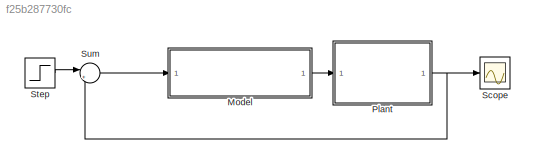
MODEL slx_f25b287730fc
KIND model
CONFIG AbsTol = auto
CONFIG EnableMultiTasking = off
CONFIG FixedStep = auto
CONFIG MaxStep = auto
CONFIG MinStep = auto
CONFIG RelTol = 1e-3
CONFIG SampleTimeConstraint = Unconstrained
CONFIG SolverName = VariableStepAuto
CONFIG StartTime = 0.0
CONFIG StopTime = 50
BLOCK [ModelReference] Model
  ModelNameDialog = PID_reference_model.slx
  ModelReferenceVersion = 1.4
  Ports = [1, 1]
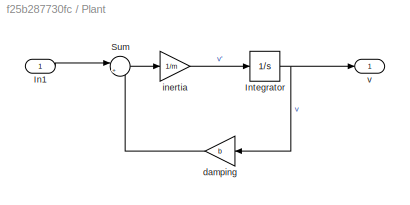
BLOCK [SubSystem] Plant
  Ports = [1, 1]
  RequestExecContextInheritance = off
BLOCK [Inport] Plant/In1
BLOCK [Integrator] Plant/Integrator
  Ports = [1, 1]
BLOCK [Sum] Plant/Sum
  Inputs = |+-
  Ports = [2, 1]
BLOCK [Gain] Plant/damping
  Gain = b
BLOCK [Gain] Plant/inertia
  Gain = 1/m
BLOCK [Outport] Plant/v
BLOCK [Scope] Scope
  Floating = off
  NumInputPorts = 1
  Ports = [1]
  ScopeSpecificationString = Simulink.scopes.TimeScopeBlockCfg('CurrentConfiguration', extmgr.ConfigurationSet(extmgr.Configuration('Core','General UI',true),extmgr.Configuration('Core','Source UI',true),extmgr.Configuration('Sources','WiredSimulink',true),extmgr.Configuration('Visuals','Time Domain',true,'SerializedDisplays',{struct('MinYLimReal','-0.17066','MaxYLimReal','1.53593','YLabelReal','','MinYLimMag','0.00000','MaxY...<+1354ch>
BLOCK [Step] Step
  SampleTime = 0
  Time = 0
BLOCK [Sum] Sum
  Inputs = |+-
  Ports = [2, 1]
LINE Model:1 -> Plant:1
LINE Plant/In1:1 -> Plant/Sum:1
NET Plant/Integrator:1 -> Plant/damping:1, Plant/v:1
LINE Plant/Sum:1 -> Plant/inertia:1
LINE Plant/damping:1 -> Plant/Sum:2
LINE Plant/inertia:1 -> Plant/Integrator:1
NET Plant:1 -> Scope:1, Sum:2
LINE Step:1 -> Sum:1
LINE Sum:1 -> Model:1
note: NET lines group one-source signal fan-out (src -> all destinations, sorted); 1:1 wires keep LINE
